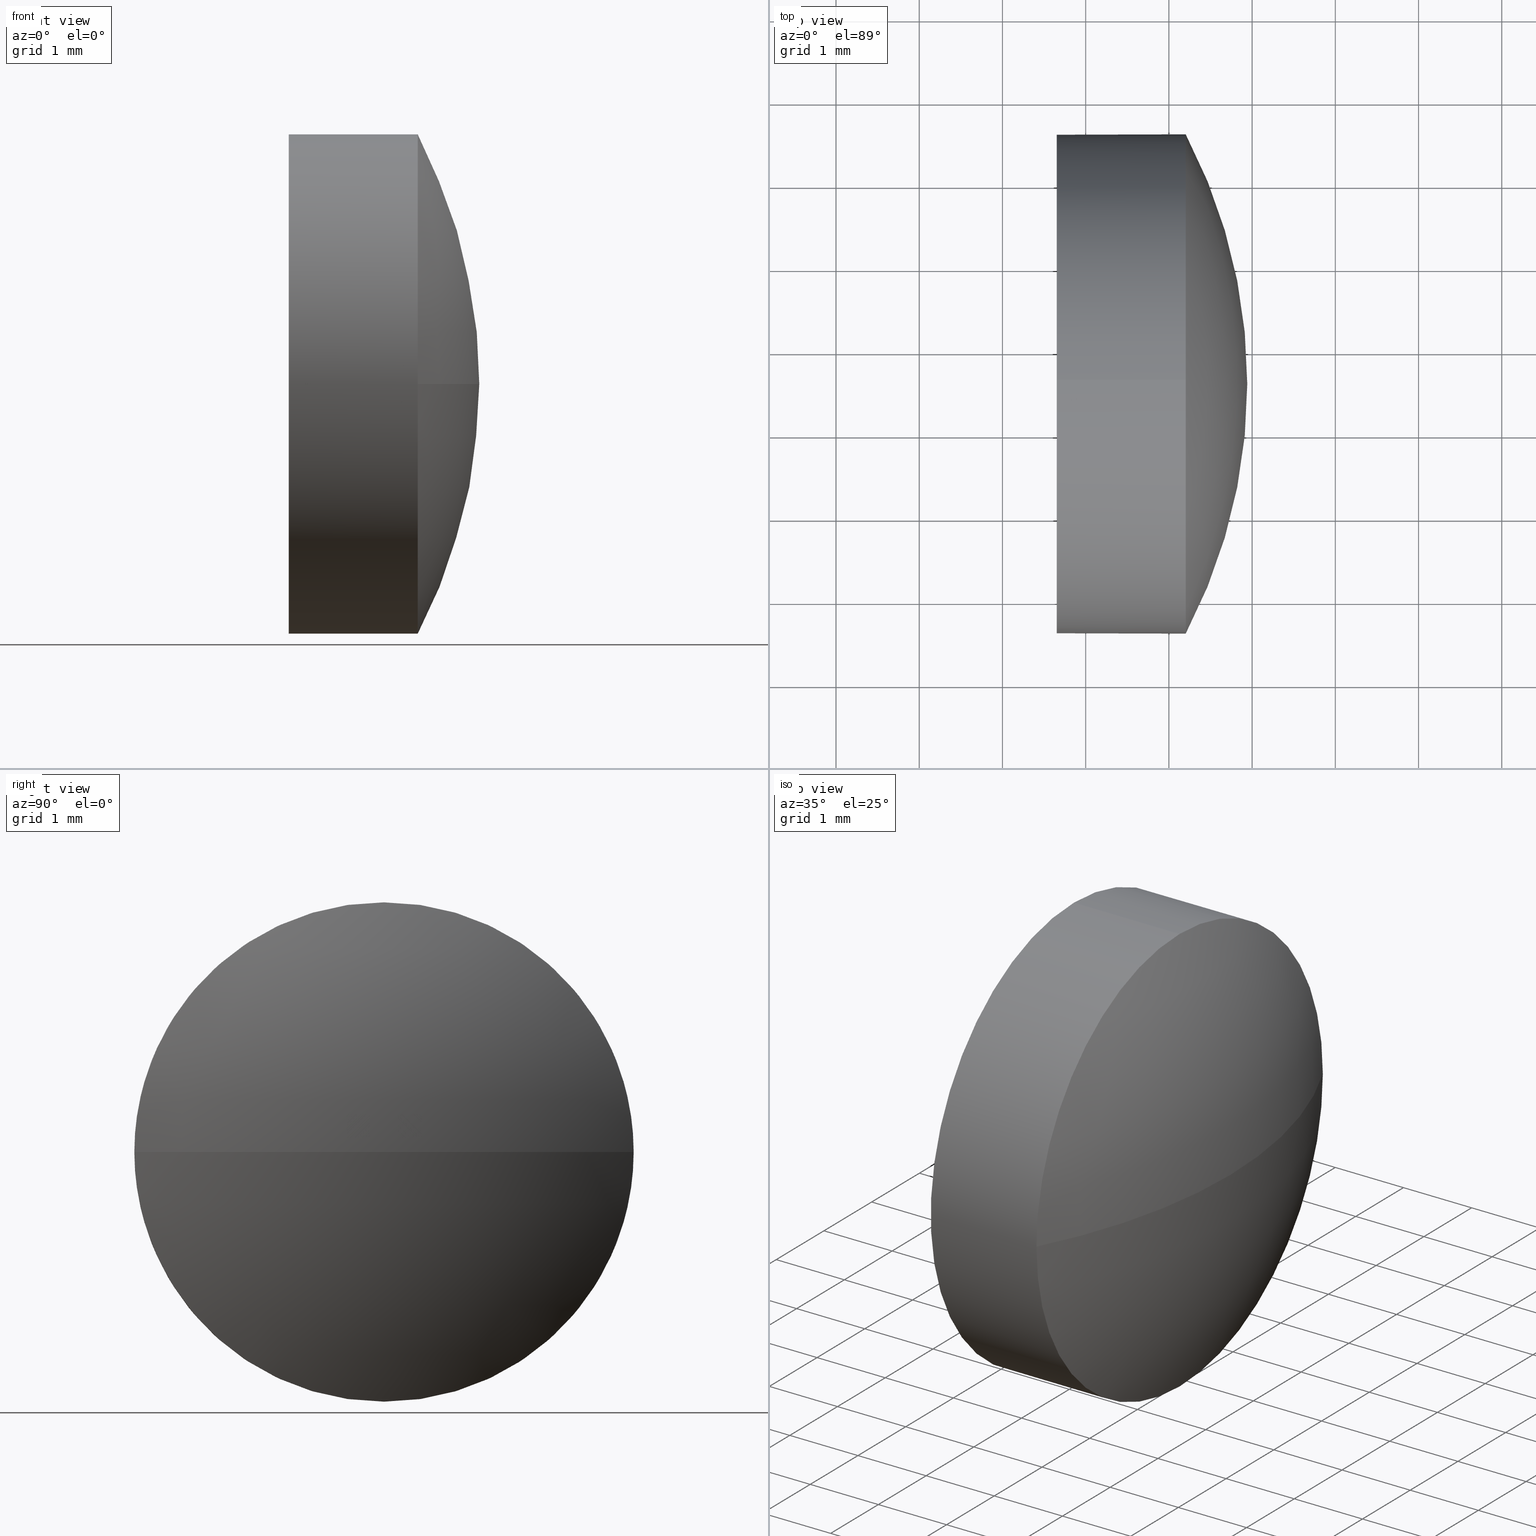
[diagram: canonical four-view strip — front | top / right | iso, engineering-drawing reading convention]
A machine part, canonical four-view strip (front | top / right | iso — engineering-drawing reading convention). The complete STEP part file that produces these views, byte-faithful:
ISO-10303-21;
HEADER;
FILE_DESCRIPTION (( 'STEP AP203' ),
    '1' );
FILE_NAME ('100541.STEP',
    '2024-05-15T02:32:01',
    ( '' ),
    ( '' ),
    'SwSTEP 2.0',
    'SolidWorks 2020',
    '' );
FILE_SCHEMA (( 'CONFIG_CONTROL_DESIGN' ));
ENDSEC;

DATA;
#1 = EDGE_LOOP ( 'NONE', ( #119, #137, #207, #155, #187 ) ) ;
#2 = COORDINATED_UNIVERSAL_TIME_OFFSET ( 8, 0, .AHEAD. ) ;
#3 = CALENDAR_DATE ( 2024, 15, 5 ) ;
#4 = ORIENTED_EDGE ( 'NONE', *, *, #204, .T. ) ;
#5 = SPHERICAL_SURFACE ( 'NONE', #25, 6.455000000000000959 ) ;
#6 = EDGE_CURVE ( 'NONE', #107, #170, #134, .T. ) ;
#7 =( NAMED_UNIT ( * ) PLANE_ANGLE_UNIT ( ) SI_UNIT ( $, .RADIAN. ) );
#8 = ORIENTED_EDGE ( 'NONE', *, *, #30, .F. ) ;
#9 = ORIENTED_EDGE ( 'NONE', *, *, #89, .F. ) ;
#10 = CARTESIAN_POINT ( 'NONE',  ( 2.652301464341483950, 0.5942976565702010605, -3.000000000000000000 ) ) ;
#11 = ADVANCED_FACE ( 'NONE', ( #129 ), #114, .F. ) ;
#12 = DIRECTION ( 'NONE',  ( 0.000000000000000000, 1.000000000000000000, 1.224646799147353207E-16 ) ) ;
#13 = MANIFOLD_SOLID_BREP ( '��ת1', #171 ) ;
#14 = APPROVAL_ROLE ( '' ) ;
#15 = CIRCLE ( 'NONE', #150, 3.000000000000000000 ) ;
#16 = LOCAL_TIME ( 10, 32, 1.000000000000000000, #106 ) ;
#17 = APPLICATION_CONTEXT ( 'configuration controlled 3d designs of mechanical parts and assemblies' ) ;
#18 = CIRCLE ( 'NONE', #184, 6.455000000000000959 ) ;
#19 = SECURITY_CLASSIFICATION_LEVEL ( 'unclassified' ) ;
#20 = EDGE_LOOP ( 'NONE', ( #77, #37, #156, #167 ) ) ;
#21 = DIRECTION ( 'NONE',  ( 0.000000000000000000, 0.000000000000000000, 1.000000000000000000 ) ) ;
#22 = PERSON_AND_ORGANIZATION ( #154, #151 ) ;
#23 = CYLINDRICAL_SURFACE ( 'NONE', #52, 3.000000000000000000 ) ;
#24 = CARTESIAN_POINT ( 'NONE',  ( 4.202301464341483772, 0.5942976565702007274, 0.000000000000000000 ) ) ;
#25 = AXIS2_PLACEMENT_3D ( 'NONE', #123, #161, #199 ) ;
#26 = EDGE_CURVE ( 'NONE', #138, #57, #15, .T. ) ;
#27 = PERSON_AND_ORGANIZATION ( #154, #151 ) ;
#28 = DIRECTION ( 'NONE',  ( -1.000000000000000000, -0.000000000000000000, -0.000000000000000000 ) ) ;
#29 = DATE_AND_TIME ( #169, #16 ) ;
#30 = EDGE_CURVE ( 'NONE', #210, #157, #146, .T. ) ;
#31 = PERSON_AND_ORGANIZATION_ROLE ( 'design_owner' ) ;
#32 = APPROVAL ( #82, 'δָ��' ) ;
#33 = CC_DESIGN_SECURITY_CLASSIFICATION ( #220, ( #35 ) ) ;
#34 = AXIS2_PLACEMENT_3D ( 'NONE', #24, #80, #145 ) ;
#35 = PRODUCT_DEFINITION_FORMATION_WITH_SPECIFIED_SOURCE ( '�κ�', '', #102, .NOT_KNOWN. ) ;
#36 = APPROVAL_ROLE ( '' ) ;
#37 = ORIENTED_EDGE ( 'NONE', *, *, #148, .T. ) ;
#38 = CALENDAR_DATE ( 2024, 15, 5 ) ;
#39 = ORIENTED_EDGE ( 'NONE', *, *, #183, .F. ) ;
#40 = CARTESIAN_POINT ( 'NONE',  ( 2.652301464341484394, 0.5942976565702007274, 3.000000000000000000 ) ) ;
#41 = CARTESIAN_POINT ( 'NONE',  ( 4.202301464341483772, 3.594297656570200949, 0.000000000000000000 ) ) ;
#42 = DATE_TIME_ROLE ( 'classification_date' ) ;
#43 = ORIENTED_EDGE ( 'NONE', *, *, #202, .T. ) ;
#44 = APPROVAL_STATUS ( 'not_yet_approved' ) ;
#45 = DIRECTION ( 'NONE',  ( -1.000000000000000000, -0.000000000000000000, -0.000000000000000000 ) ) ;
#46 = PERSON_AND_ORGANIZATION ( #154, #151 ) ;
#47 = EDGE_LOOP ( 'NONE', ( #125, #205, #39, #8 ) ) ;
#48 = DIRECTION ( 'NONE',  ( -1.000000000000000000, -0.000000000000000000, -0.000000000000000000 ) ) ;
#49 = EDGE_CURVE ( 'NONE', #57, #210, #69, .T. ) ;
#50 = APPROVAL_DATE_TIME ( #29, #135 ) ;
#51 = DIRECTION ( 'NONE',  ( 0.000000000000000000, 0.000000000000000000, 1.000000000000000000 ) ) ;
#52 = AXIS2_PLACEMENT_3D ( 'NONE', #86, #218, #66 ) ;
#53 = AXIS2_PLACEMENT_3D ( 'NONE', #141, #61, #198 ) ;
#54 = LOCAL_TIME ( 10, 32, 1.000000000000000000, #2 ) ;
#55 = ORIENTED_EDGE ( 'NONE', *, *, #26, .T. ) ;
#56 = APPROVAL_DATE_TIME ( #76, #168 ) ;
#57 = VERTEX_POINT ( 'NONE', #163 ) ;
#58 = CARTESIAN_POINT ( 'NONE',  ( 2.652301464341483950, 0.5942976565702007274, 0.000000000000000000 ) ) ;
#59 = PERSON_AND_ORGANIZATION ( #154, #151 ) ;
#60 = APPROVAL_PERSON_ORGANIZATION ( #27, #32, #14 ) ;
#61 = DIRECTION ( 'NONE',  ( -0.000000000000000000, 0.000000000000000000, -1.000000000000000000 ) ) ;
#62 = CARTESIAN_POINT ( 'NONE',  ( 2.652301464341483950, 0.5942976565702007274, 3.000000000000000000 ) ) ;
#63 = CARTESIAN_POINT ( 'NONE',  ( 2.652301464341483950, 3.594297656570200949, 0.000000000000000000 ) ) ;
#64 = CIRCLE ( 'NONE', #95, 3.000000000000000000 ) ;
#65 = CC_DESIGN_APPROVAL ( #168, ( #35 ) ) ;
#66 = DIRECTION ( 'NONE',  ( 0.000000000000000000, 0.000000000000000000, 1.000000000000000000 ) ) ;
#67 = SHAPE_DEFINITION_REPRESENTATION ( #79, #98 ) ;
#68 =( NAMED_UNIT ( * ) SI_UNIT ( $, .STERADIAN. ) SOLID_ANGLE_UNIT ( ) );
#69 = CIRCLE ( 'NONE', #73, 3.000000000000000000 ) ;
#70 = CC_DESIGN_APPROVAL ( #32, ( #105 ) ) ;
#71 = EDGE_CURVE ( 'NONE', #96, #138, #18, .T. ) ;
#72 = COORDINATED_UNIVERSAL_TIME_OFFSET ( 8, 0, .AHEAD. ) ;
#73 = AXIS2_PLACEMENT_3D ( 'NONE', #216, #45, #160 ) ;
#74 = DATE_AND_TIME ( #3, #54 ) ;
#75 = CC_DESIGN_DATE_AND_TIME_ASSIGNMENT ( #74, #206, ( #105 ) ) ;
#76 = DATE_AND_TIME ( #110, #104 ) ;
#77 = ORIENTED_EDGE ( 'NONE', *, *, #71, .F. ) ;
#78 = CARTESIAN_POINT ( 'NONE',  ( 4.941794050296778096, 0.5942976565702011715, 0.000000000000000000 ) ) ;
#79 = PRODUCT_DEFINITION_SHAPE ( 'NONE', 'NONE',  #105 ) ;
#80 = DIRECTION ( 'NONE',  ( -1.000000000000000000, -0.000000000000000000, -0.000000000000000000 ) ) ;
#81 = DIRECTION ( 'NONE',  ( -1.000000000000000000, -0.000000000000000000, -0.000000000000000000 ) ) ;
#82 = APPROVAL_STATUS ( 'not_yet_approved' ) ;
#83 = DESIGN_CONTEXT ( 'detailed design', #221, 'design' ) ;
#84 = FACE_OUTER_BOUND ( 'NONE', #47, .T. ) ;
#85 = CIRCLE ( 'NONE', #131, 6.455000000000000959 ) ;
#86 = CARTESIAN_POINT ( 'NONE',  ( 2.652301464341484394, 0.5942976565702007274, 0.000000000000000000 ) ) ;
#87 = ADVANCED_FACE ( 'NONE', ( #84 ), #116, .T. ) ;
#88 = APPROVAL_PERSON_ORGANIZATION ( #209, #168, #189 ) ;
#89 = EDGE_CURVE ( 'NONE', #157, #170, #132, .T. ) ;
#90 = PERSON_AND_ORGANIZATION_ROLE ( 'creator' ) ;
#91 = AXIS2_PLACEMENT_3D ( 'NONE', #58, #174, #94 ) ;
#92 = COORDINATED_UNIVERSAL_TIME_OFFSET ( 8, 0, .AHEAD. ) ;
#93 = DIRECTION ( 'NONE',  ( -1.000000000000000000, -0.000000000000000000, -0.000000000000000000 ) ) ;
#94 = DIRECTION ( 'NONE',  ( 0.000000000000000000, 0.000000000000000000, 1.000000000000000000 ) ) ;
#95 = AXIS2_PLACEMENT_3D ( 'NONE', #126, #109, #51 ) ;
#96 = VERTEX_POINT ( 'NONE', #78 ) ;
#97 = LINE ( 'NONE', #40, #201 ) ;
#98 = ADVANCED_BREP_SHAPE_REPRESENTATION ( '100541', ( #13, #178 ), #165 ) ;
#99 = DIRECTION ( 'NONE',  ( 0.000000000000000000, 0.000000000000000000, 1.000000000000000000 ) ) ;
#100 = LOCAL_TIME ( 10, 32, 1.000000000000000000, #72 ) ;
#101 = APPLICATION_PROTOCOL_DEFINITION ( 'international standard', 'config_control_design', 1994, #221 ) ;
#102 = PRODUCT ( '100541', '100541', '', ( #159 ) ) ;
#103 = AXIS2_PLACEMENT_3D ( 'NONE', #144, #180, #21 ) ;
#104 = LOCAL_TIME ( 10, 32, 1.000000000000000000, #92 ) ;
#105 = PRODUCT_DEFINITION ( 'δ֪', '', #35, #83 ) ;
#106 = COORDINATED_UNIVERSAL_TIME_OFFSET ( 8, 0, .AHEAD. ) ;
#107 = VERTEX_POINT ( 'NONE', #62 ) ;
#108 = APPROVAL_STATUS ( 'not_yet_approved' ) ;
#109 = DIRECTION ( 'NONE',  ( -1.000000000000000000, -0.000000000000000000, -0.000000000000000000 ) ) ;
#110 = CALENDAR_DATE ( 2024, 15, 5 ) ;
#111 = ADVANCED_FACE ( 'NONE', ( #177 ), #149, .T. ) ;
#112 = CARTESIAN_POINT ( 'NONE',  ( 0.000000000000000000, 0.000000000000000000, 0.000000000000000000 ) ) ;
#113 = CARTESIAN_POINT ( 'NONE',  ( -1.513205949703222419, 0.5942976565702007274, 0.000000000000000000 ) ) ;
#114 = PLANE ( 'NONE',  #136 ) ;
#115 = PRODUCT_RELATED_PRODUCT_CATEGORY ( 'detail', '', ( #102 ) ) ;
#116 = SPHERICAL_SURFACE ( 'NONE', #53, 6.455000000000000959 ) ;
#117 = ORIENTED_EDGE ( 'NONE', *, *, #202, .F. ) ;
#118 = CALENDAR_DATE ( 2024, 15, 5 ) ;
#119 = ORIENTED_EDGE ( 'NONE', *, *, #30, .T. ) ;
#120 = PERSON_AND_ORGANIZATION_ROLE ( 'creator' ) ;
#121 = ORIENTED_EDGE ( 'NONE', *, *, #183, .T. ) ;
#122 = ADVANCED_FACE ( 'NONE', ( #172 ), #5, .T. ) ;
#123 = CARTESIAN_POINT ( 'NONE',  ( -1.513205949703222419, 0.5942976565702007274, 0.000000000000000000 ) ) ;
#124 = PERSON_AND_ORGANIZATION ( #154, #151 ) ;
#125 = ORIENTED_EDGE ( 'NONE', *, *, #148, .F. ) ;
#126 = CARTESIAN_POINT ( 'NONE',  ( 4.202301464341483772, 0.5942976565702007274, 0.000000000000000000 ) ) ;
#127 = CARTESIAN_POINT ( 'NONE',  ( 2.652301464341484394, 0.5942976565702010605, -3.000000000000000000 ) ) ;
#128 = DIRECTION ( 'NONE',  ( 1.000000000000000000, 0.000000000000000000, 0.000000000000000000 ) ) ;
#129 = FACE_OUTER_BOUND ( 'NONE', #194, .T. ) ;
#130 = CC_DESIGN_PERSON_AND_ORGANIZATION_ASSIGNMENT ( #124, #191, ( #220 ) ) ;
#131 = AXIS2_PLACEMENT_3D ( 'NONE', #192, #142, #140 ) ;
#132 = LINE ( 'NONE', #127, #197 ) ;
#133 =( LENGTH_UNIT ( ) NAMED_UNIT ( * ) SI_UNIT ( .MILLI., .METRE. ) );
#134 = CIRCLE ( 'NONE', #200, 3.000000000000000000 ) ;
#135 = APPROVAL ( #108, 'δָ��' ) ;
#136 = AXIS2_PLACEMENT_3D ( 'NONE', #63, #196, #179 ) ;
#137 = ORIENTED_EDGE ( 'NONE', *, *, #89, .T. ) ;
#138 = VERTEX_POINT ( 'NONE', #139 ) ;
#139 = CARTESIAN_POINT ( 'NONE',  ( 4.202301464341483772, -2.405702343429799495, -3.673940397442060361E-16 ) ) ;
#140 = DIRECTION ( 'NONE',  ( 1.000000000000000000, 0.000000000000000000, 0.000000000000000000 ) ) ;
#141 = CARTESIAN_POINT ( 'NONE',  ( -1.513205949703222419, 0.5942976565702007274, 0.000000000000000000 ) ) ;
#142 = DIRECTION ( 'NONE',  ( -0.000000000000000000, 0.000000000000000000, 1.000000000000000000 ) ) ;
#143 = CARTESIAN_POINT ( 'NONE',  ( 4.202301464341483772, 0.5942976565702007274, 0.000000000000000000 ) ) ;
#144 = CARTESIAN_POINT ( 'NONE',  ( 2.652301464341484394, 0.5942976565702007274, 0.000000000000000000 ) ) ;
#145 = DIRECTION ( 'NONE',  ( 0.000000000000000000, 0.000000000000000000, 1.000000000000000000 ) ) ;
#146 = CIRCLE ( 'NONE', #34, 3.000000000000000000 ) ;
#147 = APPROVAL_PERSON_ORGANIZATION ( #22, #135, #36 ) ;
#148 = EDGE_CURVE ( 'NONE', #96, #210, #85, .T. ) ;
#149 = CYLINDRICAL_SURFACE ( 'NONE', #103, 3.000000000000000000 ) ;
#150 = AXIS2_PLACEMENT_3D ( 'NONE', #143, #28, #99 ) ;
#151 = ORGANIZATION ( 'δָ��', 'δָ��', '' ) ;
#152 = CC_DESIGN_PERSON_AND_ORGANIZATION_ASSIGNMENT ( #212, #90, ( #105 ) ) ;
#153 = CC_DESIGN_APPROVAL ( #135, ( #220 ) ) ;
#154 = PERSON ( 'δָ��', 'δָ��', 'δָ��', ('δָ��'), ('δָ��'), ('δָ��') ) ;
#155 = ORIENTED_EDGE ( 'NONE', *, *, #204, .F. ) ;
#156 = ORIENTED_EDGE ( 'NONE', *, *, #49, .F. ) ;
#157 = VERTEX_POINT ( 'NONE', #219 ) ;
#158 = PERSON_AND_ORGANIZATION ( #154, #151 ) ;
#159 = MECHANICAL_CONTEXT ( 'NONE', #17, 'mechanical' ) ;
#160 = DIRECTION ( 'NONE',  ( 0.000000000000000000, 0.000000000000000000, 1.000000000000000000 ) ) ;
#161 = DIRECTION ( 'NONE',  ( -0.000000000000000000, 0.000000000000000000, -1.000000000000000000 ) ) ;
#162 = UNCERTAINTY_MEASURE_WITH_UNIT (LENGTH_MEASURE( 1.000000000000000082E-05 ), #133, 'distance_accuracy_value', 'NONE');
#163 = CARTESIAN_POINT ( 'NONE',  ( 4.202301464341483772, 0.5942976565702007274, 3.000000000000000000 ) ) ;
#164 = ADVANCED_FACE ( 'NONE', ( #211 ), #23, .T. ) ;
#165 =( GEOMETRIC_REPRESENTATION_CONTEXT ( 3 ) GLOBAL_UNCERTAINTY_ASSIGNED_CONTEXT ( ( #162 ) ) GLOBAL_UNIT_ASSIGNED_CONTEXT ( ( #133, #7, #68 ) ) REPRESENTATION_CONTEXT ( 'NONE', 'WORKASPACE' ) );
#166 = CC_DESIGN_PERSON_AND_ORGANIZATION_ASSIGNMENT ( #59, #120, ( #35 ) ) ;
#167 = ORIENTED_EDGE ( 'NONE', *, *, #26, .F. ) ;
#168 = APPROVAL ( #44, 'δָ��' ) ;
#169 = CALENDAR_DATE ( 2024, 15, 5 ) ;
#170 = VERTEX_POINT ( 'NONE', #10 ) ;
#171 = CLOSED_SHELL ( 'NONE', ( #164, #87, #11, #122, #111 ) ) ;
#172 = FACE_OUTER_BOUND ( 'NONE', #20, .T. ) ;
#173 = APPROVAL_DATE_TIME ( #186, #32 ) ;
#174 = DIRECTION ( 'NONE',  ( -1.000000000000000000, -0.000000000000000000, -0.000000000000000000 ) ) ;
#175 = PERSON_AND_ORGANIZATION_ROLE ( 'design_supplier' ) ;
#176 = DIRECTION ( 'NONE',  ( 0.000000000000000000, 1.224646799147353207E-16, -1.000000000000000000 ) ) ;
#177 = FACE_OUTER_BOUND ( 'NONE', #190, .T. ) ;
#178 = AXIS2_PLACEMENT_3D ( 'NONE', #112, #214, #128 ) ;
#179 = DIRECTION ( 'NONE',  ( 0.000000000000000000, 0.000000000000000000, -1.000000000000000000 ) ) ;
#180 = DIRECTION ( 'NONE',  ( -1.000000000000000000, -0.000000000000000000, -0.000000000000000000 ) ) ;
#181 = CC_DESIGN_DATE_AND_TIME_ASSIGNMENT ( #193, #42, ( #220 ) ) ;
#182 = CIRCLE ( 'NONE', #91, 3.000000000000000000 ) ;
#183 = EDGE_CURVE ( 'NONE', #157, #138, #64, .T. ) ;
#184 = AXIS2_PLACEMENT_3D ( 'NONE', #113, #176, #12 ) ;
#185 = LOCAL_TIME ( 10, 32, 1.000000000000000000, #203 ) ;
#186 = DATE_AND_TIME ( #118, #100 ) ;
#187 = ORIENTED_EDGE ( 'NONE', *, *, #49, .T. ) ;
#188 = CC_DESIGN_PERSON_AND_ORGANIZATION_ASSIGNMENT ( #46, #31, ( #102 ) ) ;
#189 = APPROVAL_ROLE ( '' ) ;
#190 = EDGE_LOOP ( 'NONE', ( #9, #121, #55, #4, #117 ) ) ;
#191 = PERSON_AND_ORGANIZATION_ROLE ( 'classification_officer' ) ;
#192 = CARTESIAN_POINT ( 'NONE',  ( -1.513205949703222419, 0.5942976565702007274, 0.000000000000000000 ) ) ;
#193 = DATE_AND_TIME ( #38, #185 ) ;
#194 = EDGE_LOOP ( 'NONE', ( #208, #43 ) ) ;
#195 = APPLICATION_PROTOCOL_DEFINITION ( 'international standard', 'config_control_design', 1994, #17 ) ;
#196 = DIRECTION ( 'NONE',  ( 1.000000000000000000, 0.000000000000000000, 0.000000000000000000 ) ) ;
#197 = VECTOR ( 'NONE', #48, 1000.000000000000000 ) ;
#198 = DIRECTION ( 'NONE',  ( 0.000000000000000000, 1.000000000000000000, 0.000000000000000000 ) ) ;
#199 = DIRECTION ( 'NONE',  ( 0.000000000000000000, 1.000000000000000000, 0.000000000000000000 ) ) ;
#200 = AXIS2_PLACEMENT_3D ( 'NONE', #215, #81, #213 ) ;
#201 = VECTOR ( 'NONE', #93, 1000.000000000000000 ) ;
#202 = EDGE_CURVE ( 'NONE', #170, #107, #182, .T. ) ;
#203 = COORDINATED_UNIVERSAL_TIME_OFFSET ( 8, 0, .AHEAD. ) ;
#204 = EDGE_CURVE ( 'NONE', #57, #107, #97, .T. ) ;
#205 = ORIENTED_EDGE ( 'NONE', *, *, #71, .T. ) ;
#206 = DATE_TIME_ROLE ( 'creation_date' ) ;
#207 = ORIENTED_EDGE ( 'NONE', *, *, #6, .F. ) ;
#208 = ORIENTED_EDGE ( 'NONE', *, *, #6, .T. ) ;
#209 = PERSON_AND_ORGANIZATION ( #154, #151 ) ;
#210 = VERTEX_POINT ( 'NONE', #41 ) ;
#211 = FACE_OUTER_BOUND ( 'NONE', #1, .T. ) ;
#212 = PERSON_AND_ORGANIZATION ( #154, #151 ) ;
#213 = DIRECTION ( 'NONE',  ( 0.000000000000000000, 0.000000000000000000, 1.000000000000000000 ) ) ;
#214 = DIRECTION ( 'NONE',  ( 0.000000000000000000, 0.000000000000000000, 1.000000000000000000 ) ) ;
#215 = CARTESIAN_POINT ( 'NONE',  ( 2.652301464341483950, 0.5942976565702007274, 0.000000000000000000 ) ) ;
#216 = CARTESIAN_POINT ( 'NONE',  ( 4.202301464341483772, 0.5942976565702007274, 0.000000000000000000 ) ) ;
#217 = CC_DESIGN_PERSON_AND_ORGANIZATION_ASSIGNMENT ( #158, #175, ( #35 ) ) ;
#218 = DIRECTION ( 'NONE',  ( -1.000000000000000000, -0.000000000000000000, -0.000000000000000000 ) ) ;
#219 = CARTESIAN_POINT ( 'NONE',  ( 4.202301464341483772, 0.5942976565702010605, -3.000000000000000000 ) ) ;
#220 = SECURITY_CLASSIFICATION ( '', '', #19 ) ;
#221 = APPLICATION_CONTEXT ( 'configuration controlled 3d designs of mechanical parts and assemblies' ) ;
ENDSEC;
END-ISO-10303-21;
